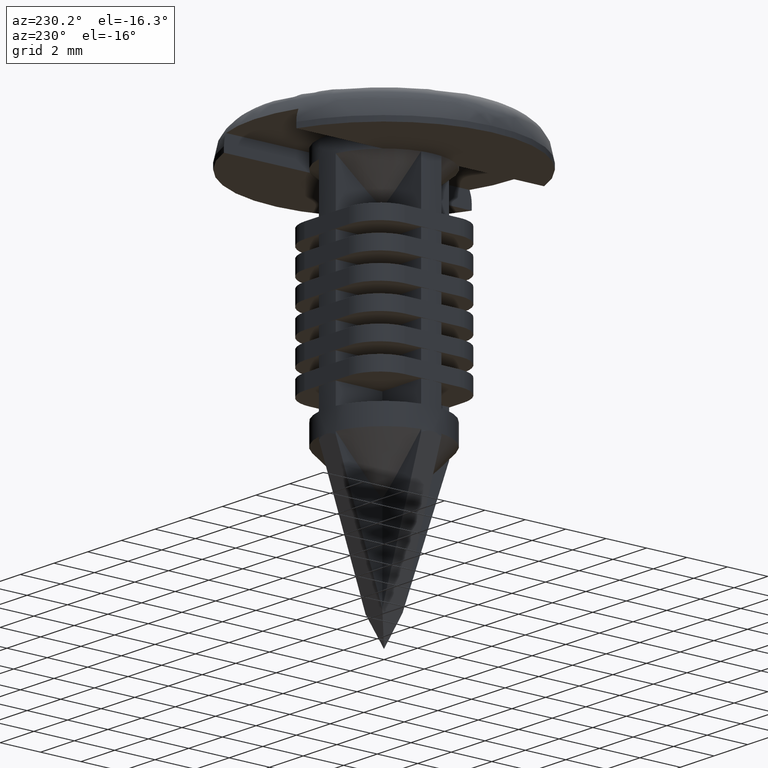
[diagram: clean part render]
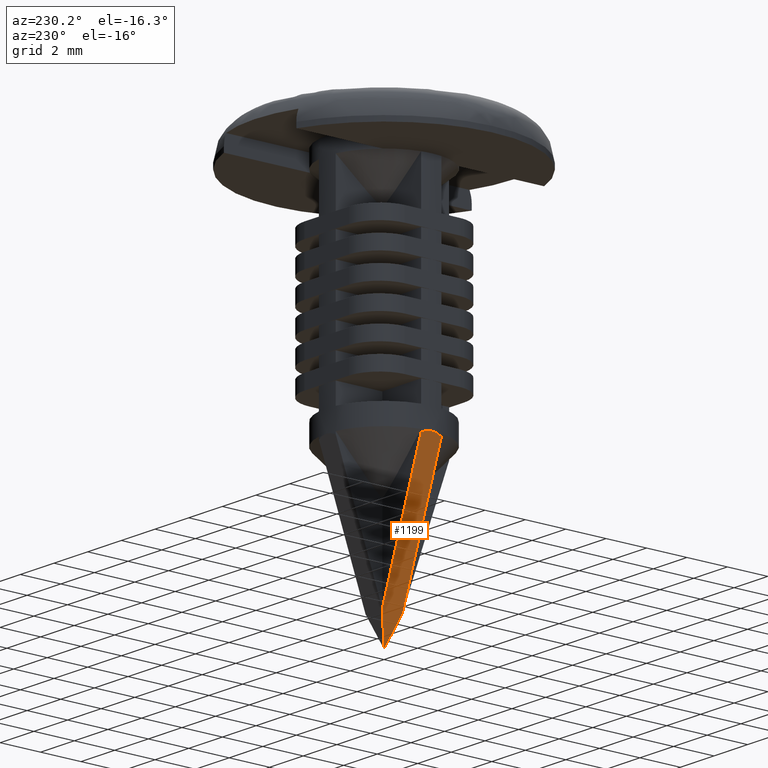
[diagram: same view with one face highlighted and labeled with its STEP entity id]
A machine part, auxiliary view. The second image highlights one B-rep face of the part: STEP entity #1199.
In plain terms, the highlighted face is a freeform B-spline surface patch.
Its self-contained STEP definition (entity closure, byte-faithful):
#153=CARTESIAN_POINT('',(-2.805796988120370,-0.499999999999972,-13.124079215736440));
#154=VERTEX_POINT('',#153);
#160=CARTESIAN_POINT('',(-2.805797328013955,0.499998092651373,-13.124078261649119));
#161=VERTEX_POINT('',#160);
#162=CARTESIAN_POINT('',(-2.805796988120371,-0.499999999999972,-13.124079215736430));
#163=CARTESIAN_POINT('',(-2.894898056044697,-0.000000983959182,-12.873970959338424));
#164=CARTESIAN_POINT('',(-2.805797328013965,0.499998092651373,-13.124078261649160));
#172=(BOUNDED_CURVE()B_SPLINE_CURVE(2,(#162,#163,#164),.UNSPECIFIED.,.F.,.U.)CURVE()GEOMETRIC_REPRESENTATION_ITEM()QUASI_UNIFORM_CURVE()RATIONAL_B_SPLINE_CURVE((1.0,0.984490428553698,1.0))REPRESENTATION_ITEM(''));
#173=EDGE_CURVE('',#154,#161,#172,.T.);
#1103=CARTESIAN_POINT('',(0.000000029275537,-0.000000029275728,-21.000000528190501));
#1104=VERTEX_POINT('',#1103);
#1110=CARTESIAN_POINT('',(-0.499998092651367,-0.499998092651294,-19.596497052972499));
#1111=VERTEX_POINT('',#1110);
#1112=CARTESIAN_POINT('',(0.000000029275537,-0.000000029275728,-21.000000528190501));
#1113=CARTESIAN_POINT('',(-0.499998092651367,-0.499998092651294,-19.596497052972499));
#1114=QUASI_UNIFORM_CURVE('',1,(#1112,#1113),.UNSPECIFIED.,.F.,.U.);
#1115=EDGE_CURVE('',#1104,#1111,#1114,.T.);
#1163=CARTESIAN_POINT('',(-0.499999999999993,0.500000000000000,-19.596491699011601));
#1164=VERTEX_POINT('',#1163);
#1170=CARTESIAN_POINT('',(-0.499999999999993,0.500000000000000,-19.596491699011601));
#1171=CARTESIAN_POINT('',(0.000000029275537,-0.000000029275728,-21.000000528190501));
#1172=QUASI_UNIFORM_CURVE('',1,(#1170,#1171),.UNSPECIFIED.,.F.,.U.);
#1173=EDGE_CURVE('',#1164,#1104,#1172,.T.);
#1179=CARTESIAN_POINT('',(-2.992356992005334,-0.549949998061777,-12.600402021149840));
#1180=CARTESIAN_POINT('',(0.142357364137349,-0.549949998061777,-21.399600057547339));
#1181=CARTESIAN_POINT('',(-2.992356992005334,0.549950024883895,-12.600402021149840));
#1182=CARTESIAN_POINT('',(0.142357364137349,0.549950024883895,-21.399600057547339));
#1183=B_SPLINE_SURFACE_WITH_KNOTS('',1,1,((#1179,#1181),(#1180,#1182)),.UNSPECIFIED.,.F.,.F.,.U.,(2,2),(2,2),(0.0,9.340895041608626),(0.041708334948495,0.958291687403247),.UNSPECIFIED.);
#1184=ORIENTED_EDGE('',*,*,#1173,.F.);
#1185=CARTESIAN_POINT('',(-0.499999999999993,0.500000000000000,-19.596491699011601));
#1186=CARTESIAN_POINT('',(-2.805797328013955,0.499998092651373,-13.124078261649119));
#1187=QUASI_UNIFORM_CURVE('',1,(#1185,#1186),.UNSPECIFIED.,.F.,.U.);
#1188=EDGE_CURVE('',#1164,#161,#1187,.T.);
#1189=ORIENTED_EDGE('',*,*,#1188,.T.);
#1190=ORIENTED_EDGE('',*,*,#173,.F.);
#1191=CARTESIAN_POINT('',(-2.805796988120370,-0.499999999999972,-13.124079215736440));
#1192=CARTESIAN_POINT('',(-0.499998092651367,-0.499998092651294,-19.596497052972499));
#1193=QUASI_UNIFORM_CURVE('',1,(#1191,#1192),.UNSPECIFIED.,.F.,.U.);
#1194=EDGE_CURVE('',#154,#1111,#1193,.T.);
#1195=ORIENTED_EDGE('',*,*,#1194,.T.);
#1196=ORIENTED_EDGE('',*,*,#1115,.F.);
#1197=EDGE_LOOP('',(#1184,#1189,#1190,#1195,#1196));
#1198=FACE_OUTER_BOUND('',#1197,.T.);
#1199=ADVANCED_FACE('',(#1198),#1183,.T.);